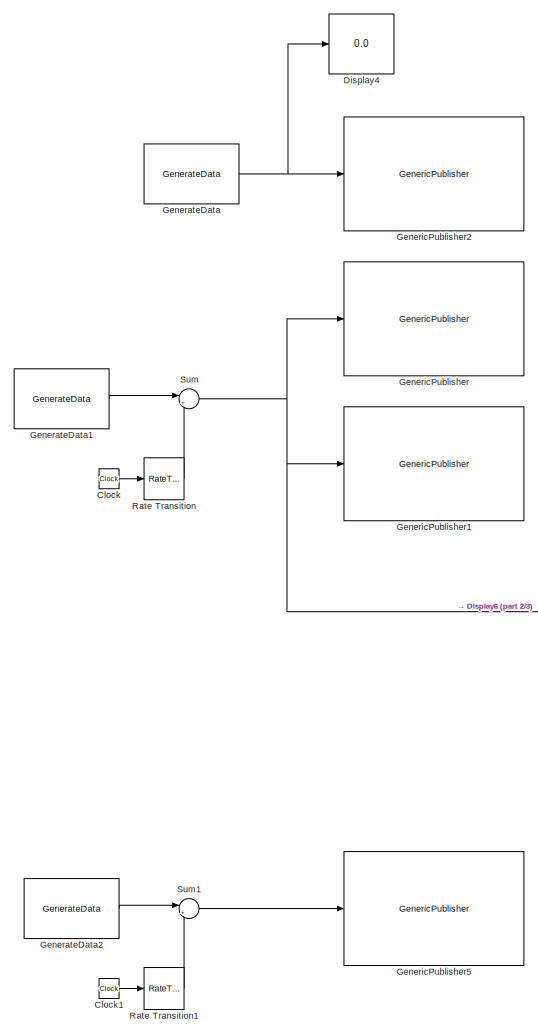
[diagram: root canvas - part 1/3, left side, full height]
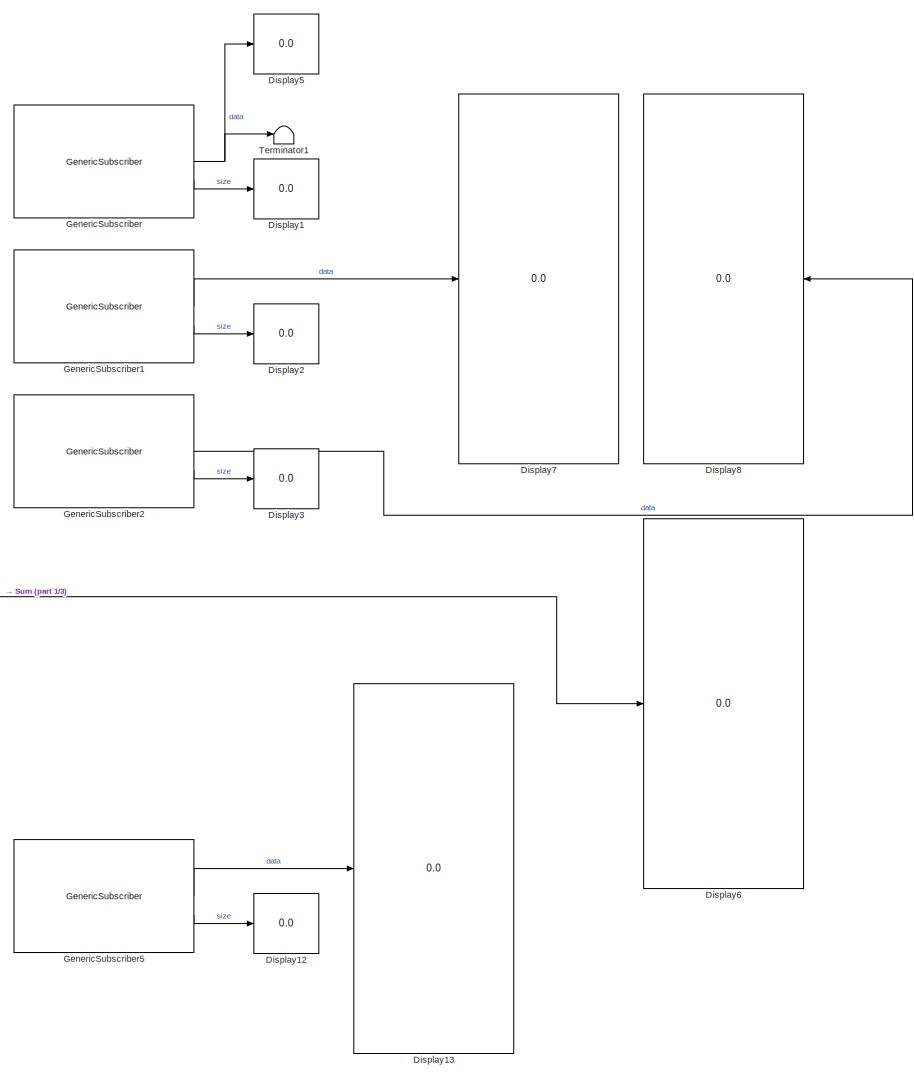
[diagram: root canvas - part 2/3, right side, full height]
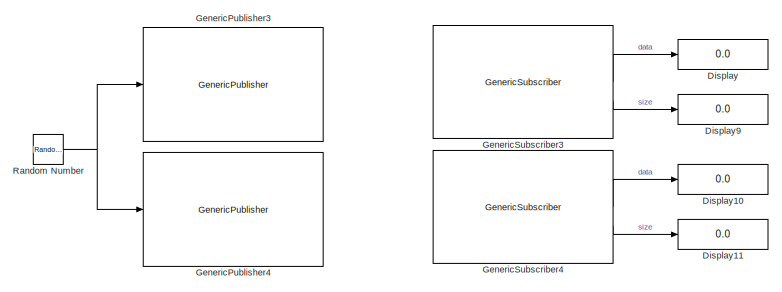
[diagram: root canvas - part 3/3, bottom center region]
MODEL slx_740467c0f422
KIND model
CONFIG AbsTol = auto
CONFIG EnableMultiTasking = off
CONFIG FixedStep = auto
CONFIG MaxStep = auto
CONFIG MinStep = auto
CONFIG RelTol = 1e-3
CONFIG SampleTimeConstraint = Unconstrained
CONFIG SolverName = FixedStepAuto
CONFIG StartTime = 0.0
CONFIG StopTime = 50
WORKSPACE source: mxarray member
WORKSPACE SL_Bus_ROSEnable64bitIntegers = 1
WORKSPACE SL_ROS_VariableLengthArrays_MaxSizes: object (value not decoded)
BLOCK [Clock] Clock
BLOCK [Clock] Clock1
BLOCK [Display] Display
  Decimation = 1
BLOCK [Display] Display1
  Decimation = 1
BLOCK [Display] Display10
  Decimation = 1
BLOCK [Display] Display11
  Decimation = 1
BLOCK [Display] Display12
  Decimation = 1
BLOCK [Display] Display13
  Decimation = 1
BLOCK [Display] Display2
  Decimation = 1
BLOCK [Display] Display3
  Decimation = 1
BLOCK [Display] Display4
  Decimation = 1
BLOCK [Display] Display5
  Decimation = 1
BLOCK [Display] Display6
  Decimation = 1
BLOCK [Display] Display7
  Decimation = 1
BLOCK [Display] Display8
  Decimation = 1
  NameLocation = top
BLOCK [Display] Display9
  Decimation = 1
BLOCK [Reference] GenerateData  REF=roshelperlib/GenerateData  (lib defined in slx_3328ea0e13a5)
  SourceBlock = roshelperlib/GenerateData
BLOCK [Reference] GenerateData1  REF=roshelperlib/GenerateData  (lib defined in slx_3328ea0e13a5)
  SourceBlock = roshelperlib/GenerateData
BLOCK [Reference] GenerateData2  REF=roshelperlib/GenerateData  (lib defined in slx_3328ea0e13a5)
  SourceBlock = roshelperlib/GenerateData
BLOCK [Reference] GenericPublisher  REF=roshelperlib/GenericPublisher  (lib defined in slx_3328ea0e13a5)
  SourceBlock = roshelperlib/GenericPublisher
BLOCK [Reference] GenericPublisher1  REF=roshelperlib/GenericPublisher  (lib defined in slx_3328ea0e13a5)
  SourceBlock = roshelperlib/GenericPublisher
BLOCK [Reference] GenericPublisher2  REF=roshelperlib/GenericPublisher  (lib defined in slx_3328ea0e13a5)
  SourceBlock = roshelperlib/GenericPublisher
BLOCK [Reference] GenericPublisher3  REF=roshelperlib/GenericPublisher  (lib defined in slx_3328ea0e13a5)
  SourceBlock = roshelperlib/GenericPublisher
BLOCK [Reference] GenericPublisher4  REF=roshelperlib/GenericPublisher  (lib defined in slx_3328ea0e13a5)
  SourceBlock = roshelperlib/GenericPublisher
BLOCK [Reference] GenericPublisher5  REF=roshelperlib/GenericPublisher  (lib defined in slx_3328ea0e13a5)
  SourceBlock = roshelperlib/GenericPublisher
BLOCK [Reference] GenericSubscriber  REF=roshelperlib/GenericSubscriber  (lib defined in slx_3328ea0e13a5)
  SourceBlock = roshelperlib/GenericSubscriber
BLOCK [Reference] GenericSubscriber1  REF=roshelperlib/GenericSubscriber  (lib defined in slx_3328ea0e13a5)
  SourceBlock = roshelperlib/GenericSubscriber
BLOCK [Reference] GenericSubscriber2  REF=roshelperlib/GenericSubscriber  (lib defined in slx_3328ea0e13a5)
  SourceBlock = roshelperlib/GenericSubscriber
BLOCK [Reference] GenericSubscriber3  REF=roshelperlib/GenericSubscriber  (lib defined in slx_3328ea0e13a5)
  SourceBlock = roshelperlib/GenericSubscriber
BLOCK [Reference] GenericSubscriber4  REF=roshelperlib/GenericSubscriber  (lib defined in slx_3328ea0e13a5)
  SourceBlock = roshelperlib/GenericSubscriber
BLOCK [Reference] GenericSubscriber5  REF=roshelperlib/GenericSubscriber  (lib defined in slx_3328ea0e13a5)
  SourceBlock = roshelperlib/GenericSubscriber
BLOCK [RandomNumber] Random Number
  SampleTime = 0.1
BLOCK [RateTransition] Rate Transition
BLOCK [RateTransition] Rate Transition1
BLOCK [Sum] Sum
  Inputs = |++
BLOCK [Sum] Sum1
  Inputs = |++
BLOCK [Terminator] Terminator1
LINE Clock1:1 -> Rate Transition1:1
LINE Clock:1 -> Rate Transition:1
LINE GenerateData1:1 -> Sum:1
LINE GenerateData2:1 -> Sum1:1
NET GenerateData:1 -> Display4:1, GenericPublisher2:1
LINE GenericSubscriber1:1 -> Display7:1
LINE GenericSubscriber1:2 -> Display2:1
LINE GenericSubscriber2:1 -> Display8:1
LINE GenericSubscriber2:2 -> Display3:1
LINE GenericSubscriber3:1 -> Display:1
LINE GenericSubscriber3:2 -> Display9:1
LINE GenericSubscriber4:1 -> Display10:1
LINE GenericSubscriber4:2 -> Display11:1
LINE GenericSubscriber5:1 -> Display13:1
LINE GenericSubscriber5:2 -> Display12:1
NET GenericSubscriber:1 -> Display5:1, Terminator1:1
LINE GenericSubscriber:2 -> Display1:1
NET Random Number:1 -> GenericPublisher3:1, GenericPublisher4:1
LINE Rate Transition1:1 -> Sum1:2
LINE Rate Transition:1 -> Sum:2
LINE Sum1:1 -> GenericPublisher5:1
NET Sum:1 -> Display6:1, GenericPublisher1:1, GenericPublisher:1
note: NET lines group one-source signal fan-out (src -> all destinations, sorted); 1:1 wires keep LINE
